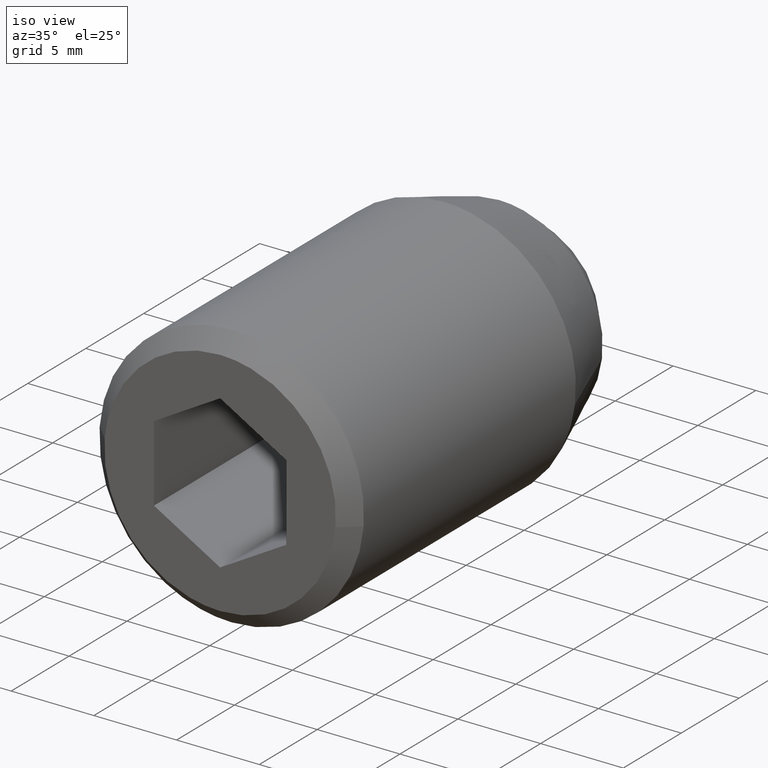
[diagram: clean part render]
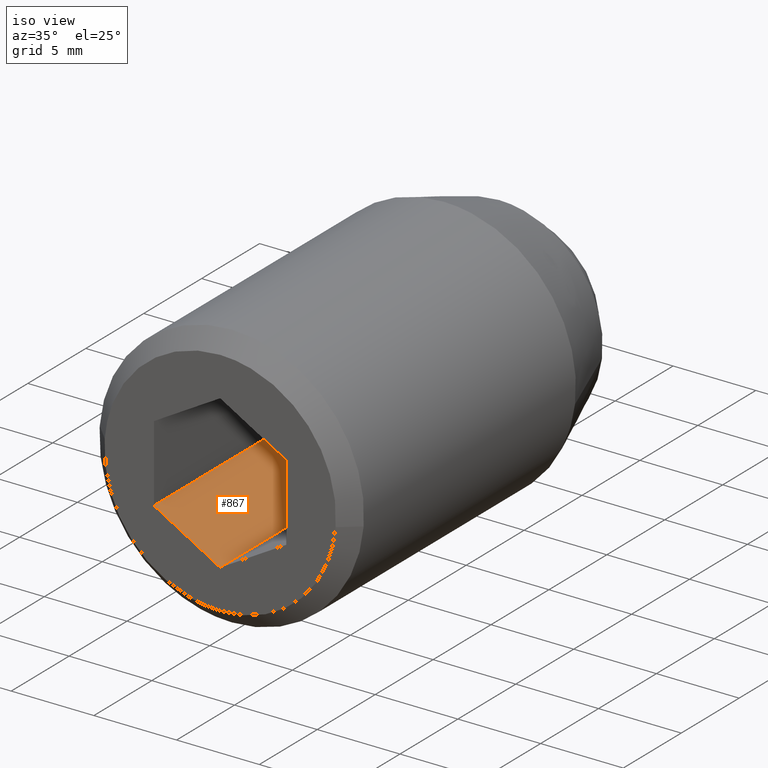
[diagram: same view with one face highlighted and labeled with its STEP entity id]
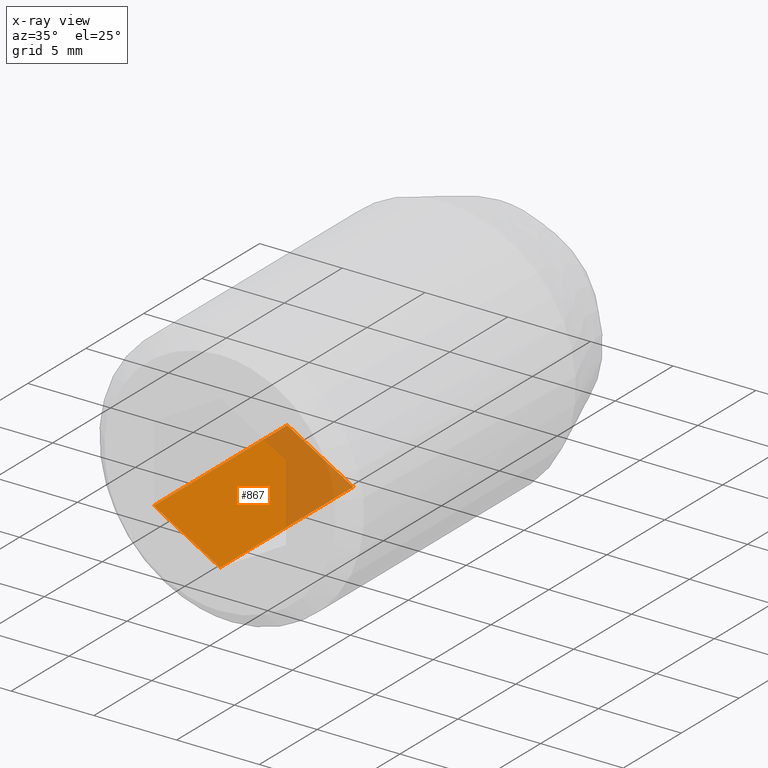
[diagram: x-ray of the same camera — body ghosted, the highlighted face saturated]
A machine part, iso view. The second image highlights one B-rep face of the part: STEP entity #867.
The next image is the same camera in x-ray: the body ghosted, the highlighted face saturated — about 28% of this face is hidden behind the body in this view.
In plain terms, the highlighted face is a freeform B-spline surface patch.
Its self-contained STEP definition (entity closure, byte-faithful):
#738=CARTESIAN_POINT('',(-4.0,-12.600000000000000,-2.309401000000000));
#739=VERTEX_POINT('',#738);
#745=CARTESIAN_POINT('',(0.0,-12.600000000000000,-4.618802000000000));
#746=VERTEX_POINT('',#745);
#747=CARTESIAN_POINT('',(-4.0,-12.600000000000000,-2.309401000000000));
#748=CARTESIAN_POINT('',(0.0,-12.600000000000000,-4.618802000000000));
#749=QUASI_UNIFORM_CURVE('',1,(#747,#748),.UNSPECIFIED.,.F.,.U.);
#750=EDGE_CURVE('',#739,#746,#749,.T.);
#829=CARTESIAN_POINT('',(0.0,-24.100000000000001,-4.618802000000000));
#830=VERTEX_POINT('',#829);
#838=CARTESIAN_POINT('',(0.0,-12.600000000000000,-4.618802000000000));
#839=CARTESIAN_POINT('',(0.0,-24.100000000000001,-4.618802000000000));
#840=QUASI_UNIFORM_CURVE('',1,(#838,#839),.UNSPECIFIED.,.F.,.U.);
#841=EDGE_CURVE('',#746,#830,#840,.T.);
#846=CARTESIAN_POINT('',(0.199800029796360,-24.674425368439781,-4.734156597152940));
#847=CARTESIAN_POINT('',(-4.199800101321936,-24.674425368439781,-2.194046361551755));
#848=CARTESIAN_POINT('',(0.199800029796360,-12.025575556922330,-4.734156597152940));
#849=CARTESIAN_POINT('',(-4.199800101321936,-12.025575556922330,-2.194046361551755));
#850=B_SPLINE_SURFACE_WITH_KNOTS('',1,1,((#846,#848),(#847,#849)),.UNSPECIFIED.,.F.,.F.,.U.,(2,2),(2,2),(0.0,5.080220597842386),(0.0,12.648849811517451),.UNSPECIFIED.);
#851=CARTESIAN_POINT('',(-4.0,-24.100000000000001,-2.309401000000000));
#852=VERTEX_POINT('',#851);
#853=CARTESIAN_POINT('',(-4.0,-24.100000000000001,-2.309401000000000));
#854=CARTESIAN_POINT('',(0.0,-24.100000000000001,-4.618802000000000));
#855=QUASI_UNIFORM_CURVE('',1,(#853,#854),.UNSPECIFIED.,.F.,.U.);
#856=EDGE_CURVE('',#852,#830,#855,.T.);
#857=ORIENTED_EDGE('',*,*,#856,.T.);
#858=ORIENTED_EDGE('',*,*,#841,.F.);
#859=ORIENTED_EDGE('',*,*,#750,.F.);
#860=CARTESIAN_POINT('',(-4.0,-12.600000000000000,-2.309401000000000));
#861=CARTESIAN_POINT('',(-4.0,-24.100000000000001,-2.309401000000000));
#862=QUASI_UNIFORM_CURVE('',1,(#860,#861),.UNSPECIFIED.,.F.,.U.);
#863=EDGE_CURVE('',#739,#852,#862,.T.);
#864=ORIENTED_EDGE('',*,*,#863,.T.);
#865=EDGE_LOOP('',(#857,#858,#859,#864));
#866=FACE_OUTER_BOUND('',#865,.T.);
#867=ADVANCED_FACE('',(#866),#850,.F.);